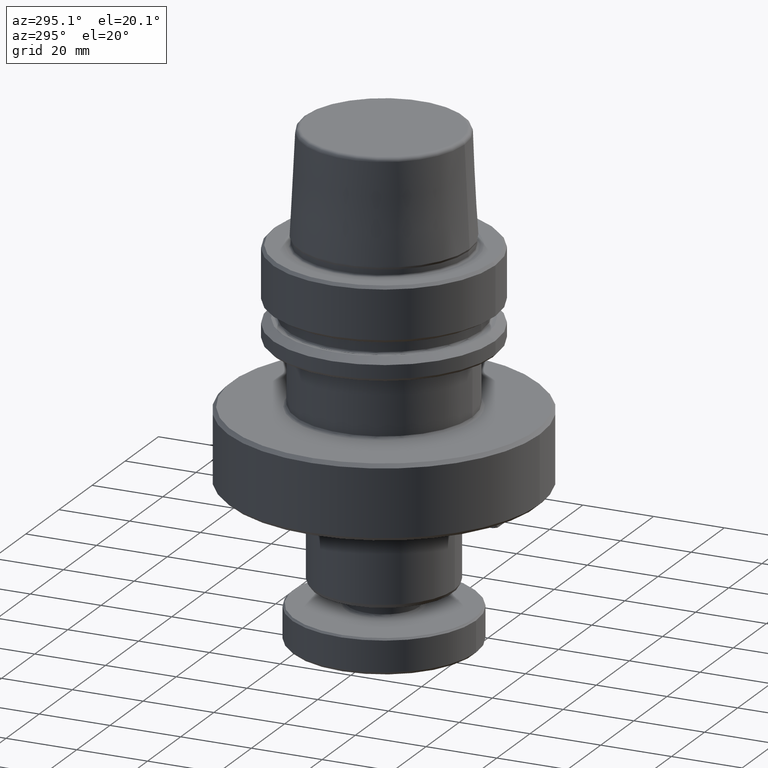
[diagram: clean part render]
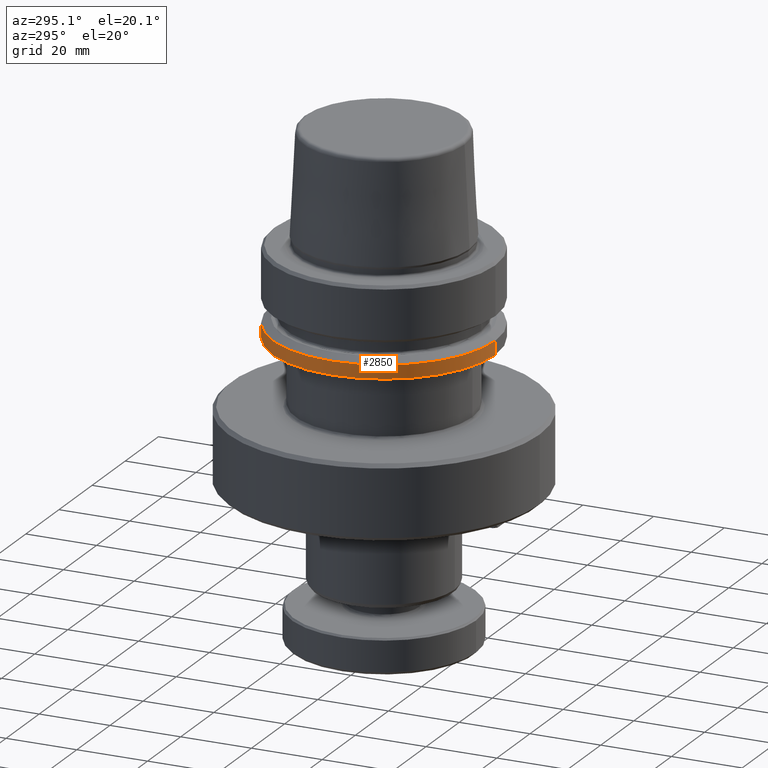
[diagram: same view with one face highlighted and labeled with its STEP entity id]
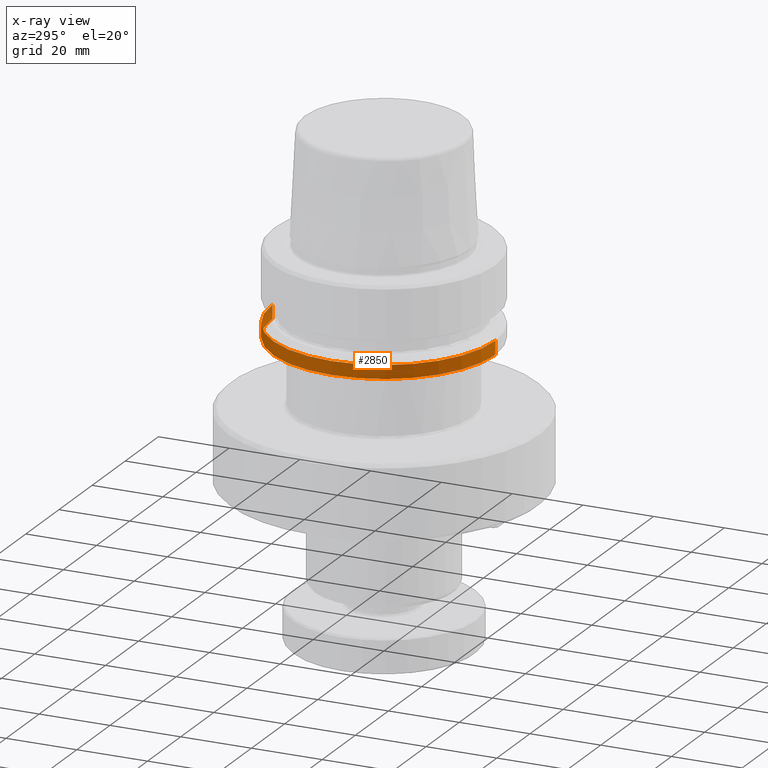
[diagram: x-ray of the same camera — body ghosted, the highlighted face saturated]
A machine part, auxiliary view. The second image highlights one B-rep face of the part: STEP entity #2850.
The next image is the same camera in x-ray: the body ghosted, the highlighted face saturated — about 1% of this face is hidden behind the body in this view.
In plain terms, the highlighted cylindrical surface (partial cylindrical patch) has radius 31.5 mm, axis along (-0, 0, 1).
Its self-contained STEP definition (entity closure, byte-faithful):
#15 = CARTESIAN_POINT ( 'NONE',  ( 0.0000000000000000000, -1.394837423287449700E-016, -21.37749907477165600 ) ) ;
#104 = ORIENTED_EDGE ( 'NONE', *, *, #1182, .F. ) ;
#294 = DIRECTION ( 'NONE',  ( 0.0000000000000000000, -1.000000000000000000, 0.0000000000000000000 ) ) ;
#641 = DIRECTION ( 'NONE',  ( -0.0000000000000000000, 1.342951762274862300E-018, 1.000000000000000000 ) ) ;
#903 = DIRECTION ( 'NONE',  ( 0.0000000000000000000, -1.000000000000000000, 0.0000000000000000000 ) ) ;
#943 = EDGE_CURVE ( 'NONE', #989, #3106, #2559, .T. ) ;
#986 = CARTESIAN_POINT ( 'NONE',  ( 3.857637417314370200E-015, 31.50000000000169500, -21.37749907477165600 ) ) ;
#989 = VERTEX_POINT ( 'NONE', #2834 ) ;
#1050 = VECTOR ( 'NONE', #3195, 1000.000000000000000 ) ;
#1182 = EDGE_CURVE ( 'NONE', #989, #2139, #2510, .T. ) ;
#1443 = CARTESIAN_POINT ( 'NONE',  ( 0.0000000000000000000, -31.50000000000169500, 82.48605451442777800 ) ) ;
#1463 = DIRECTION ( 'NONE',  ( -0.0000000000000000000, 1.342951762274862300E-018, 1.000000000000000000 ) ) ;
#1498 = DIRECTION ( 'NONE',  ( -0.0000000000000000000, 1.342951762274862300E-018, 1.000000000000000000 ) ) ;
#1499 = CYLINDRICAL_SURFACE ( 'NONE', #2081, 31.50000000000169500 ) ;
#1545 = CIRCLE ( 'NONE', #2014, 31.50000000000169500 ) ;
#1645 = CARTESIAN_POINT ( 'NONE',  ( 0.0000000000000000000, -31.50000000000169500, -25.20000000001182300 ) ) ;
#1660 = VERTEX_POINT ( 'NONE', #3597 ) ;
#1883 = AXIS2_PLACEMENT_3D ( 'NONE', #2275, #641, #2551 ) ;
#1947 = DIRECTION ( 'NONE',  ( -0.0000000000000000000, 1.342951762274862300E-018, 1.000000000000000000 ) ) ;
#2014 = AXIS2_PLACEMENT_3D ( 'NONE', #15, #1947, #294 ) ;
#2081 = AXIS2_PLACEMENT_3D ( 'NONE', #2553, #1463, #903 ) ;
#2139 = VERTEX_POINT ( 'NONE', #986 ) ;
#2275 = CARTESIAN_POINT ( 'NONE',  ( 0.0000000000000000000, -1.446171766825935600E-016, -25.20000000001182300 ) ) ;
#2381 = EDGE_LOOP ( 'NONE', ( #104, #3154, #3481, #3427 ) ) ;
#2510 = LINE ( 'NONE', #2669, #1050 ) ;
#2551 = DIRECTION ( 'NONE',  ( 0.0000000000000000000, -1.000000000000000000, 0.0000000000000000000 ) ) ;
#2553 = CARTESIAN_POINT ( 'NONE',  ( 0.0000000000000000000, 0.0000000000000000000, 82.48605451442777800 ) ) ;
#2559 = CIRCLE ( 'NONE', #1883, 31.50000000000169500 ) ;
#2617 = VECTOR ( 'NONE', #1498, 1000.000000000000000 ) ;
#2669 = CARTESIAN_POINT ( 'NONE',  ( 3.857637417314370200E-015, 31.50000000000169500, 82.48605451442777800 ) ) ;
#2704 = LINE ( 'NONE', #1443, #2617 ) ;
#2834 = CARTESIAN_POINT ( 'NONE',  ( 3.857637417314370200E-015, 31.50000000000169500, -25.20000000001182300 ) ) ;
#2850 = ADVANCED_FACE ( 'NONE', ( #3044 ), #1499, .T. ) ;
#3044 = FACE_OUTER_BOUND ( 'NONE', #2381, .T. ) ;
#3106 = VERTEX_POINT ( 'NONE', #1645 ) ;
#3154 = ORIENTED_EDGE ( 'NONE', *, *, #943, .T. ) ;
#3162 = EDGE_CURVE ( 'NONE', #2139, #1660, #1545, .T. ) ;
#3195 = DIRECTION ( 'NONE',  ( -0.0000000000000000000, 1.342951762274862300E-018, 1.000000000000000000 ) ) ;
#3427 = ORIENTED_EDGE ( 'NONE', *, *, #3162, .F. ) ;
#3481 = ORIENTED_EDGE ( 'NONE', *, *, #3591, .T. ) ;
#3591 = EDGE_CURVE ( 'NONE', #3106, #1660, #2704, .T. ) ;
#3597 = CARTESIAN_POINT ( 'NONE',  ( 0.0000000000000000000, -31.50000000000169500, -21.37749907477165600 ) ) ;